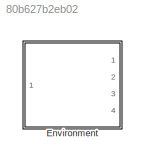
MODEL slx_80b627b2eb02
KIND library
CONFIG AbsTol = auto
CONFIG EnableMultiTasking = off
CONFIG FixedStep = auto
CONFIG MaxStep = auto
CONFIG MinStep = auto
CONFIG RelTol = 1e-3
CONFIG SampleTimeConstraint = Unconstrained
CONFIG Solver = VariableStepAuto
CONFIG SolverName = VariableStepAuto
CONFIG StartTime = 0.0
CONFIG StopTime = 10.0
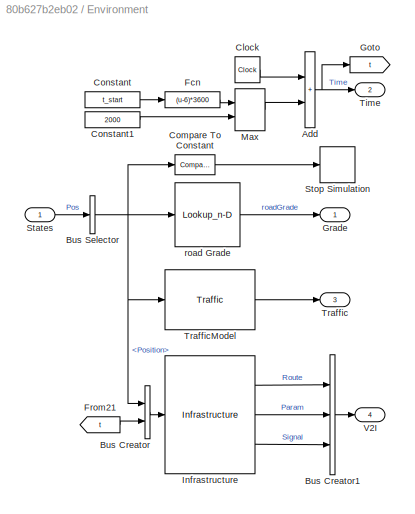
BLOCK [SubSystem] Environment
  Ports = [1, 4]
  RequestExecContextInheritance = off
BLOCK [Sum] Environment/Add
  IconShape = rectangular
  Ports = [2, 1]
BLOCK [BusCreator] Environment/Bus Creator
  DisplayOption = bar
  InheritFromInputs = on
  Inputs = 2
  Ports = [2, 1]
BLOCK [BusCreator] Environment/Bus Creator1
  DisplayOption = bar
  InheritFromInputs = on
  Inputs = 3
  Ports = [3, 1]
BLOCK [BusSelector] Environment/Bus Selector
  OutputSignals = Position
  Ports = [1, 1]
BLOCK [Clock] Environment/Clock
  Decimation = 1/timeStep
BLOCK [Reference] Environment/Compare To Constant  REF=simulink/Logic and Bit
Operations/Compare
To Constant
  Ports = [1, 1]
  SourceBlock = simulink/Logic and Bit\nOperations/Compare\nTo Constant
  SourceProductBaseCode = SL
  SourceType = Compare To Constant
BLOCK [Constant] Environment/Constant
  Value = t_start
BLOCK [Constant] Environment/Constant1
  Value = 2000
BLOCK [Fcn] Environment/Fcn
  Expr = (u-6)*3600
BLOCK [From] Environment/From21
  GotoTag = t
BLOCK [Goto] Environment/Goto
  GotoTag = t
BLOCK [Outport] Environment/Grade
  VectorParamsAs1DForOutWhenUnconnected = off
BLOCK [Reference] Environment/Infrastructure  REF=Infrastructure_CL/Infrastructure
  Ports = [1, 3]
  SourceBlock = Infrastructure_CL/Infrastructure
  SourceType = SubSystem
BLOCK [MinMax] Environment/Max
  Function = max
  Inputs = 2
  Ports = [2, 1]
BLOCK [Inport] Environment/States
BLOCK [Stop] Environment/Stop Simulation
BLOCK [Outport] Environment/Time
  Port = 2
  VectorParamsAs1DForOutWhenUnconnected = off
BLOCK [Outport] Environment/Traffic
  Port = 3
  VectorParamsAs1DForOutWhenUnconnected = off
BLOCK [Reference] Environment/TrafficModel  REF=Traffic_2_UL/Traffic
  Ports = [1, 1]
  SourceBlock = Traffic_2_UL/Traffic
BLOCK [Outport] Environment/V2I
  Port = 4
  VectorParamsAs1DForOutWhenUnconnected = off
BLOCK [Lookup_n-D] Environment/road Grade
  BreakpointsForDimension1 = UNCC.X_vec
  InternalRulePriority = Speed
  NumberOfTableDimensions = 1
  Ports = [1, 1]
  RndMeth = Simplest
  Table = UNCC.theta_vec
NET Environment/Add:1 -> Environment/Goto:1, Environment/Time:1
LINE Environment/Bus Creator1:1 -> Environment/V2I:1
LINE Environment/Bus Creator:1 -> Environment/Infrastructure:1
NET Environment/Bus Selector:1 -> Environment/Bus Creator:1, Environment/Compare To Constant:1, Environment/TrafficModel:1, Environment/road Grade:1
LINE Environment/Clock:1 -> Environment/Add:1
LINE Environment/Compare To Constant:1 -> Environment/Stop Simulation:1
LINE Environment/Constant1:1 -> Environment/Max:2
LINE Environment/Constant:1 -> Environment/Fcn:1
LINE Environment/Fcn:1 -> Environment/Max:1
LINE Environment/From21:1 -> Environment/Bus Creator:2
LINE Environment/Infrastructure:1 -> Environment/Bus Creator1:1
LINE Environment/Infrastructure:2 -> Environment/Bus Creator1:2
LINE Environment/Infrastructure:3 -> Environment/Bus Creator1:3
LINE Environment/Max:1 -> Environment/Add:2
LINE Environment/States:1 -> Environment/Bus Selector:1
LINE Environment/TrafficModel:1 -> Environment/Traffic:1
LINE Environment/road Grade:1 -> Environment/Grade:1
note: NET lines group one-source signal fan-out (src -> all destinations, sorted); 1:1 wires keep LINE
